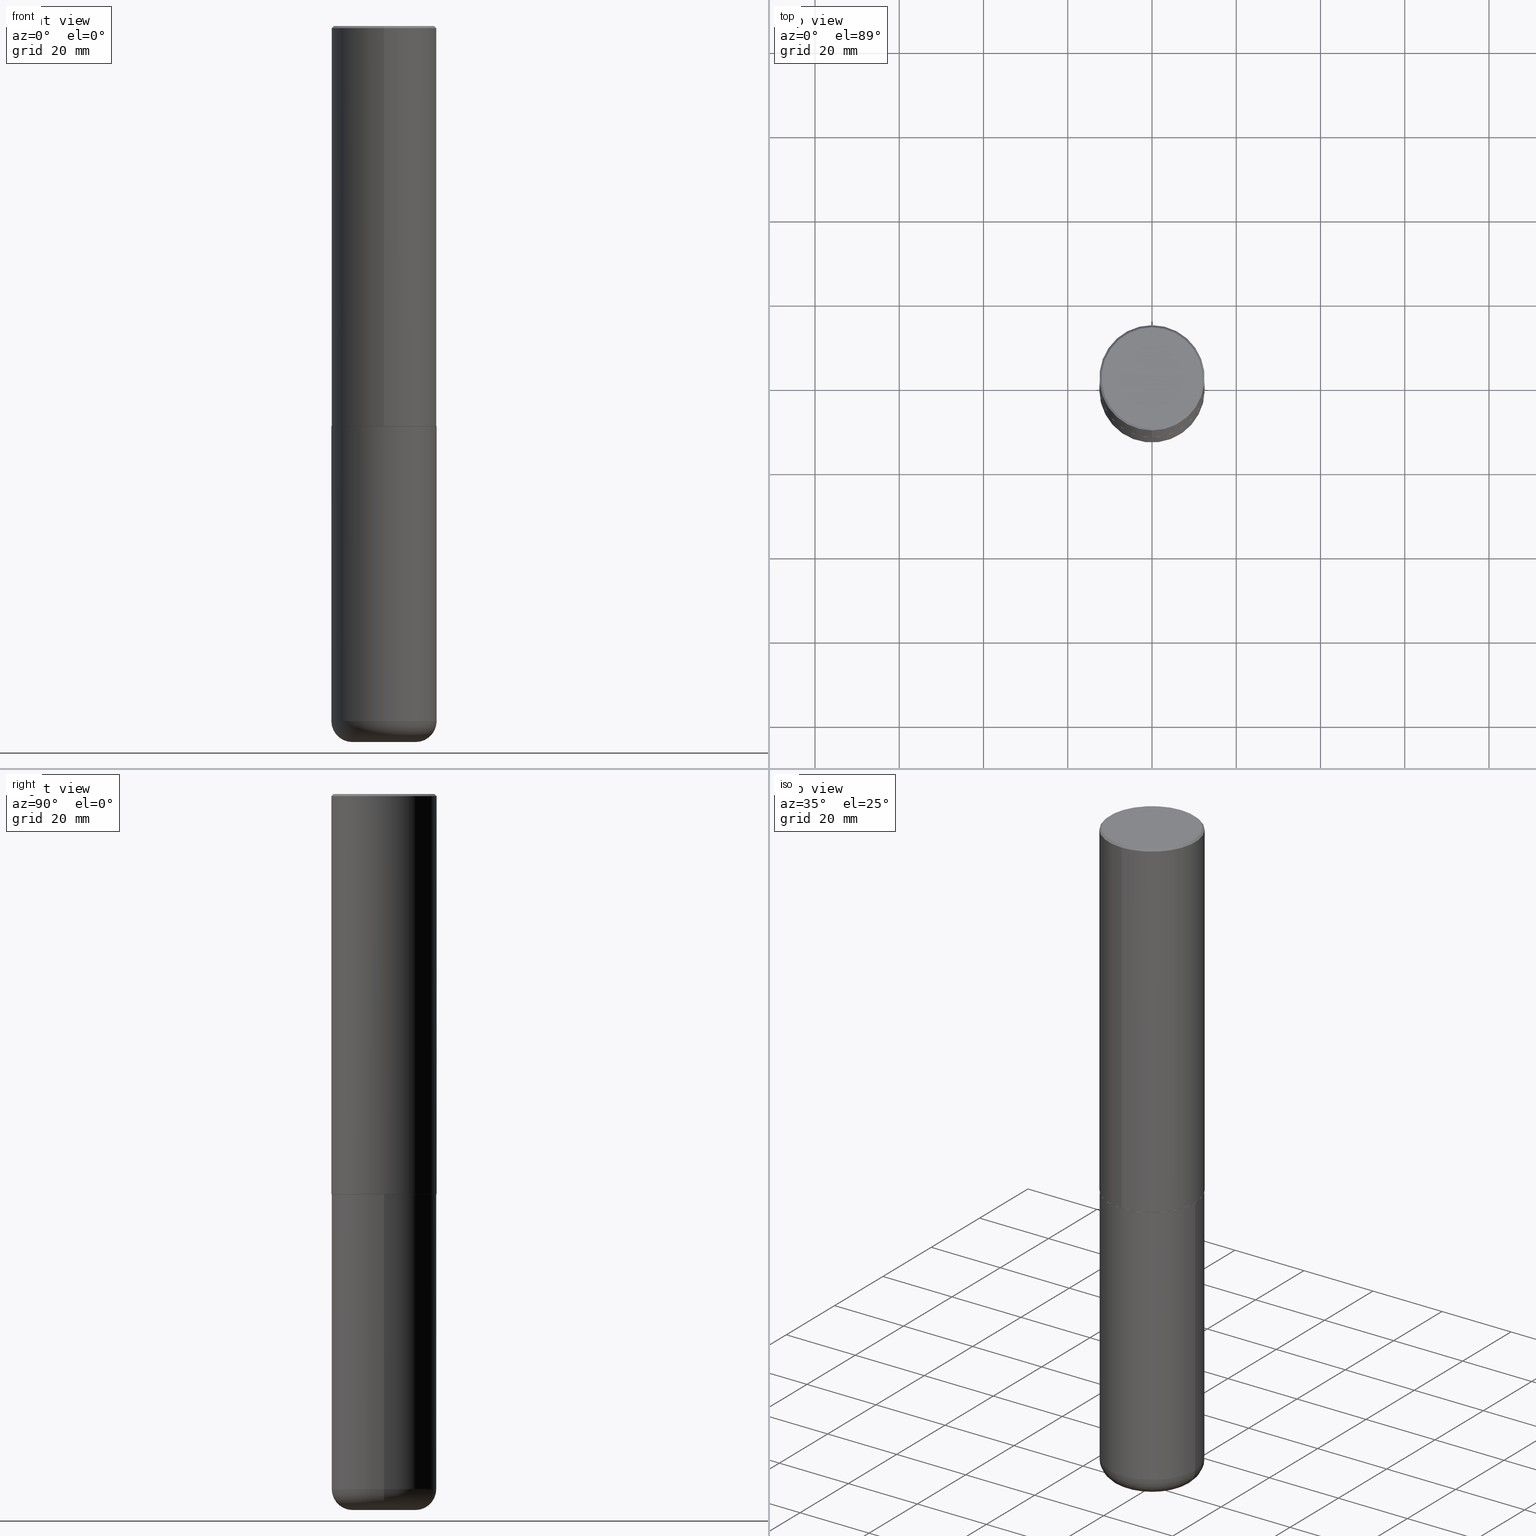
[diagram: canonical four-view strip — front | top / right | iso, engineering-drawing reading convention]
A machine part, canonical four-view strip (front | top / right | iso — engineering-drawing reading convention). The complete STEP part file that produces these views, byte-faithful:
ISO-10303-21;
HEADER;
FILE_DESCRIPTION (( 'STEP AP203' ),
    '1' );
FILE_NAME ('47635.STEP',
    '2024-03-06T19:44:06',
    ( '' ),
    ( '' ),
    'SwSTEP 2.0',
    'SolidWorks 2023',
    '' );
FILE_SCHEMA (( 'CONFIG_CONTROL_DESIGN' ));
ENDSEC;

DATA;
#1 = DIRECTION ( 'NONE',  ( -6.982962677686265922E-15, -1.000000000000000000, 3.486624039460257331E-15 ) ) ;
#2 = CIRCLE ( 'NONE', #187, 0.4921499999999999764 ) ;
#3 = SECURITY_CLASSIFICATION ( '', '', #89 ) ;
#4 = CARTESIAN_POINT ( 'NONE',  ( 9.146297882013029477E-29, -1.305848935540725085E-14, -3.740100000000000424 ) ) ;
#5 = ADVANCED_FACE ( 'NONE', ( #375 ), #343, .T. ) ;
#6 = DIRECTION ( 'NONE',  ( 6.982962677686265922E-15, 1.000000000000000000, -3.490754157143982552E-15 ) ) ;
#7 = DIRECTION ( 'NONE',  ( -4.851104656540955597E-15, -0.7071067811865487940, -0.7071067811865461294 ) ) ;
#8 = AXIS2_PLACEMENT_3D ( 'NONE', #39, #360, #117 ) ;
#9 = ORIENTED_EDGE ( 'NONE', *, *, #395, .T. ) ;
#10 = APPROVAL ( #87, 'UNSPECIFIED' ) ;
#11 = DIRECTION ( 'NONE',  ( -2.445468806185136597E-29, 3.491481338843145583E-15, 1.000000000000000000 ) ) ;
#12 = EDGE_LOOP ( 'NONE', ( #194, #242, #209, #418 ) ) ;
#13 = MANIFOLD_SOLID_BREP ( 'Body-Move/Copy2[2]', #66 ) ;
#14 = DIRECTION ( 'NONE',  ( 6.982962677686265922E-15, 1.000000000000000000, -3.486624039460257331E-15 ) ) ;
#15 = EDGE_LOOP ( 'NONE', ( #95, #9, #349, #216 ) ) ;
#16 = DIRECTION ( 'NONE',  ( 1.000000000000000000, -6.982962677686265922E-15, 0.000000000000000000 ) ) ;
#17 = AXIS2_PLACEMENT_3D ( 'NONE', #231, #68, #32 ) ;
#18 = DIRECTION ( 'NONE',  ( -2.445976594451651952E-29, 3.490754157143982552E-15, 1.000000000000000000 ) ) ;
#19 = PERSON_AND_ORGANIZATION_ROLE ( 'design_owner' ) ;
#20 = EDGE_LOOP ( 'NONE', ( #123, #347 ) ) ;
#21 = DIRECTION ( 'NONE',  ( 0.000000000000000000, 0.000000000000000000, 1.000000000000000000 ) ) ;
#22 = DIRECTION ( 'NONE',  ( 2.445976594451651952E-29, -3.490754157143982552E-15, -1.000000000000000000 ) ) ;
#23 = EDGE_CURVE ( 'NONE', #236, #192, #254, .T. ) ;
#24 = PERSON_AND_ORGANIZATION ( #176, #263 ) ;
#25 = DIRECTION ( 'NONE',  ( 6.982962677686265922E-15, 1.000000000000000000, -3.486624039460257331E-15 ) ) ;
#26 = DATE_AND_TIME ( #125, #207 ) ;
#27 = CARTESIAN_POINT ( 'NONE',  ( 0.000000000000000000, 0.000000000000000000, 0.000000000000000000 ) ) ;
#28 = DIRECTION ( 'NONE',  ( -2.445976594451651952E-29, 3.490754157143982552E-15, 1.000000000000000000 ) ) ;
#29 = TOROIDAL_SURFACE ( 'NONE', #221, 0.2952499999999999569, 0.1968999999999996031 ) ;
#30 = CARTESIAN_POINT ( 'NONE',  ( -5.420756467185317189E-45, 7.736185299407739239E-31, 2.216193106459615290E-16 ) ) ;
#31 = ADVANCED_FACE ( 'NONE', ( #380 ), #86, .T. ) ;
#32 = DIRECTION ( 'NONE',  ( 1.000000000000000000, -6.982962677686264344E-15, 4.883557194083111780E-29 ) ) ;
#33 = LINE ( 'NONE', #226, #402 ) ;
#34 =( GEOMETRIC_REPRESENTATION_CONTEXT ( 3 ) GLOBAL_UNCERTAINTY_ASSIGNED_CONTEXT ( ( #397 ) ) GLOBAL_UNIT_ASSIGNED_CONTEXT ( ( #334, #296, #177 ) ) REPRESENTATION_CONTEXT ( 'NONE', 'WORKASPACE' ) );
#35 = CARTESIAN_POINT ( 'NONE',  ( 9.145751084314172604E-29, -1.305227886897706845E-14, -3.739100000000000534 ) ) ;
#36 = ADVANCED_FACE ( 'NONE', ( #278 ), #81, .T. ) ;
#37 = DIRECTION ( 'NONE',  ( 5.024295867790978808E-15, 0.7071067811869604647, 0.7071067811861345698 ) ) ;
#38 = FACE_OUTER_BOUND ( 'NONE', #116, .T. ) ;
#39 = CARTESIAN_POINT ( 'NONE',  ( 9.148197060908621523E-29, -1.305576962313420868E-14, -3.740099999999999980 ) ) ;
#40 = ORIENTED_EDGE ( 'NONE', *, *, #94, .F. ) ;
#41 = ORIENTED_EDGE ( 'NONE', *, *, #230, .F. ) ;
#42 = LINE ( 'NONE', #112, #179 ) ;
#43 = ORIENTED_EDGE ( 'NONE', *, *, #358, .T. ) ;
#44 = CC_DESIGN_PERSON_AND_ORGANIZATION_ASSIGNMENT ( #415, #374, ( #3 ) ) ;
#45 = CARTESIAN_POINT ( 'NONE',  ( -3.307789109625541747E-15, -0.4721499999999996255, 1.869778885941491673E-15 ) ) ;
#46 = CIRCLE ( 'NONE', #351, 0.1968999999999995754 ) ;
#47 = ORIENTED_EDGE ( 'NONE', *, *, #182, .F. ) ;
#48 = COORDINATED_UNIVERSAL_TIME_OFFSET ( 5, 0, .BEHIND. ) ;
#49 = ORIENTED_EDGE ( 'NONE', *, *, #322, .T. ) ;
#50 = APPROVAL_ROLE ( '' ) ;
#51 = DIRECTION ( 'NONE',  ( -2.445468806185136597E-29, 3.491481338843145583E-15, 1.000000000000000000 ) ) ;
#52 = COORDINATED_UNIVERSAL_TIME_OFFSET ( 5, 0, .BEHIND. ) ;
#53 = CARTESIAN_POINT ( 'NONE',  ( 0.4921499999999999764, -3.436665081823295777E-15, 2.399810400207969603E-29 ) ) ;
#54 = AXIS2_PLACEMENT_3D ( 'NONE', #414, #22, #25 ) ;
#55 = PERSON_AND_ORGANIZATION ( #176, #263 ) ;
#56 = ORIENTED_EDGE ( 'NONE', *, *, #243, .F. ) ;
#57 = DATE_TIME_ROLE ( 'classification_date' ) ;
#58 = DIRECTION ( 'NONE',  ( -6.982962677686265922E-15, -1.000000000000000000, 3.490754157143982552E-15 ) ) ;
#59 = ADVANCED_FACE ( 'NONE', ( #223 ), #156, .T. ) ;
#60 = DIRECTION ( 'NONE',  ( -2.445976594451651392E-29, 3.490754157143982552E-15, 1.000000000000000000 ) ) ;
#61 = AXIS2_PLACEMENT_3D ( 'NONE', #27, #284, #58 ) ;
#62 = DIRECTION ( 'NONE',  ( -6.982962677686265922E-15, -1.000000000000000000, 3.486624039460257331E-15 ) ) ;
#63 = CARTESIAN_POINT ( 'NONE',  ( 3.489830646685823002E-15, 0.4911499999999869304, -3.740100000000001312 ) ) ;
#64 = ADVANCED_FACE ( 'NONE', ( #318 ), #269, .T. ) ;
#65 = DIRECTION ( 'NONE',  ( -2.445468806185136597E-29, 3.491481338843145583E-15, 1.000000000000000000 ) ) ;
#66 = CLOSED_SHELL ( 'NONE', ( #378, #31, #36, #274, #59, #64, #248, #121 ) ) ;
#67 = AXIS2_PLACEMENT_3D ( 'NONE', #72, #405, #16 ) ;
#68 = DIRECTION ( 'NONE',  ( -2.445468806185136597E-29, 3.491481338843145583E-15, 1.000000000000000000 ) ) ;
#69 = DIRECTION ( 'NONE',  ( -2.445468806185136597E-29, 3.491481338843145583E-15, 1.000000000000000000 ) ) ;
#70 = DIRECTION ( 'NONE',  ( -6.982962677686265922E-15, -1.000000000000000000, 3.330506545156063496E-15 ) ) ;
#71 = VERTEX_POINT ( 'NONE', #281 ) ;
#72 = CARTESIAN_POINT ( 'NONE',  ( 1.588576536497864771E-28, -2.268066277712507367E-14, -6.495999999999999552 ) ) ;
#73 = TOROIDAL_SURFACE ( 'NONE', #17, 0.2952499999999999569, 0.1968999999999996031 ) ;
#74 = ORIENTED_EDGE ( 'NONE', *, *, #113, .T. ) ;
#75 = DIRECTION ( 'NONE',  ( 1.000000000000000000, -6.982962677686273021E-15, 0.000000000000000000 ) ) ;
#76 = ORIENTED_EDGE ( 'NONE', *, *, #107, .T. ) ;
#77 = EDGE_CURVE ( 'NONE', #367, #316, #159, .T. ) ;
#78 = LENGTH_MEASURE_WITH_UNIT ( LENGTH_MEASURE( 0.02539999999999999897 ), #301 );
#79 = EDGE_LOOP ( 'NONE', ( #218, #142 ) ) ;
#80 = APPROVAL_ROLE ( '' ) ;
#81 = CONICAL_SURFACE ( 'NONE', #54, 0.4921499999999999209, 0.7853981633974467247 ) ;
#82 = EDGE_LOOP ( 'NONE', ( #340, #76, #311, #40 ) ) ;
#83 = CC_DESIGN_SECURITY_CLASSIFICATION ( #3, ( #386 ) ) ;
#84 = APPROVAL_DATE_TIME ( #246, #10 ) ;
#85 = PRODUCT_DEFINITION ( 'UNKNOWN', '', #386, #172 ) ;
#86 = CYLINDRICAL_SURFACE ( 'NONE', #104, 0.4921500000000000874 ) ;
#87 = APPROVAL_STATUS ( 'not_yet_approved' ) ;
#88 = LINE ( 'NONE', #283, #345 ) ;
#89 = SECURITY_CLASSIFICATION_LEVEL ( 'unclassified' ) ;
#90 = ORIENTED_EDGE ( 'NONE', *, *, #94, .T. ) ;
#91 = AXIS2_PLACEMENT_3D ( 'NONE', #308, #18, #396 ) ;
#92 = APPROVAL_PERSON_ORGANIZATION ( #55, #100, #80 ) ;
#93 = VERTEX_POINT ( 'NONE', #128 ) ;
#94 = EDGE_CURVE ( 'NONE', #316, #371, #314, .T. ) ;
#95 = ORIENTED_EDGE ( 'NONE', *, *, #190, .F. ) ;
#96 = ADVANCED_FACE ( 'NONE', ( #309 ), #408, .F. ) ;
#97 = DIRECTION ( 'NONE',  ( -2.445976594451651952E-29, 3.490754157143982552E-15, 1.000000000000000000 ) ) ;
#98 = AXIS2_PLACEMENT_3D ( 'NONE', #183, #28, #188 ) ;
#99 = LOCAL_TIME ( 14, 44, 6.000000000000000000, #52 ) ;
#100 = APPROVAL ( #315, 'UNSPECIFIED' ) ;
#101 = LINE ( 'NONE', #63, #245 ) ;
#102 = DIRECTION ( 'NONE',  ( 2.445976594451651392E-29, -3.490754157143982552E-15, -1.000000000000000000 ) ) ;
#103 = FACE_OUTER_BOUND ( 'NONE', #109, .T. ) ;
#104 = AXIS2_PLACEMENT_3D ( 'NONE', #224, #161, #350 ) ;
#105 = AXIS2_PLACEMENT_3D ( 'NONE', #217, #21, #313 ) ;
#106 = CARTESIAN_POINT ( 'NONE',  ( 4.891953188903329688E-31, -6.981508314288001687E-17, -0.02000000000000010797 ) ) ;
#107 = EDGE_CURVE ( 'NONE', #377, #330, #88, .T. ) ;
#108 = DIRECTION ( 'NONE',  ( 1.000000000000000000, -6.982962677686265922E-15, 4.876176775795935793E-29 ) ) ;
#109 = EDGE_LOOP ( 'NONE', ( #273, #406 ) ) ;
#110 = DIRECTION ( 'NONE',  ( -6.982962677686266711E-15, -1.000000000000000000, 3.491481338843145583E-15 ) ) ;
#111 = DIMENSIONAL_EXPONENTS ( 1.000000000000000000, 0.000000000000000000, 0.000000000000000000, 0.000000000000000000, 0.000000000000000000, 0.000000000000000000, 0.000000000000000000 ) ;
#112 = CARTESIAN_POINT ( 'NONE',  ( 3.436665081823295777E-15, 0.4921499999999998098, -0.02000000000000182188 ) ) ;
#113 = EDGE_CURVE ( 'NONE', #367, #126, #155, .T. ) ;
#114 = ORIENTED_EDGE ( 'NONE', *, *, #129, .F. ) ;
#115 = CARTESIAN_POINT ( 'NONE',  ( -0.4921499999999997543, -1.918372670308173998E-14, -6.495999999999999552 ) ) ;
#116 = EDGE_LOOP ( 'NONE', ( #74, #305, #297, #144 ) ) ;
#117 = DIRECTION ( 'NONE',  ( -6.982962677686265922E-15, -1.000000000000000000, 3.337287582609300506E-15 ) ) ;
#118 = EDGE_LOOP ( 'NONE', ( #302, #49 ) ) ;
#119 = AXIS2_PLACEMENT_3D ( 'NONE', #106, #202, #62 ) ;
#120 = CARTESIAN_POINT ( 'NONE',  ( 9.146297882013029477E-29, -1.305848935540725085E-14, -3.740100000000000424 ) ) ;
#121 = ADVANCED_FACE ( 'NONE', ( #352 ), #199, .F. ) ;
#122 = PERSON_AND_ORGANIZATION_ROLE ( 'creator' ) ;
#123 = ORIENTED_EDGE ( 'NONE', *, *, #113, .F. ) ;
#124 = DIRECTION ( 'NONE',  ( -2.445976594451651672E-29, 3.490754157143982552E-15, 1.000000000000000000 ) ) ;
#125 = CALENDAR_DATE ( 2024, 6, 3 ) ;
#126 = VERTEX_POINT ( 'NONE', #323 ) ;
#127 = CC_DESIGN_PERSON_AND_ORGANIZATION_ASSIGNMENT ( #186, #122, ( #386 ) ) ;
#128 = CARTESIAN_POINT ( 'NONE',  ( -0.2952500000000000124, -2.022699236424666989E-14, -6.692899999999998961 ) ) ;
#129 = EDGE_CURVE ( 'NONE', #153, #335, #238, .T. ) ;
#130 = ADVANCED_BREP_SHAPE_REPRESENTATION ( '47635', ( #289, #13, #105 ), #34 ) ;
#131 = FACE_OUTER_BOUND ( 'NONE', #149, .T. ) ;
#132 = CARTESIAN_POINT ( 'NONE',  ( -0.4921499999999999764, -1.437263999222282936E-14, -3.740100000000000424 ) ) ;
#133 = AXIS2_PLACEMENT_3D ( 'NONE', #35, #258, #388 ) ;
#134 = CC_DESIGN_APPROVAL ( #10, ( #85 ) ) ;
#135 = FACE_OUTER_BOUND ( 'NONE', #361, .T. ) ;
#136 = DIRECTION ( 'NONE',  ( -6.982962677686265922E-15, -1.000000000000000000, 3.337287582609300506E-15 ) ) ;
#137 = DIRECTION ( 'NONE',  ( 1.000000000000000000, -6.982962677686265922E-15, 0.000000000000000000 ) ) ;
#138 = EDGE_CURVE ( 'NONE', #335, #371, #33, .T. ) ;
#139 = CIRCLE ( 'NONE', #168, 0.4921499999999999764 ) ;
#140 = AXIS2_PLACEMENT_3D ( 'NONE', #141, #208, #75 ) ;
#141 = CARTESIAN_POINT ( 'NONE',  ( 1.636727817291649742E-28, -2.336813545274328465E-14, -6.692899999999998961 ) ) ;
#142 = ORIENTED_EDGE ( 'NONE', *, *, #219, .T. ) ;
#143 = DIRECTION ( 'NONE',  ( 2.445976594451651952E-29, -3.490754157143982552E-15, -1.000000000000000000 ) ) ;
#144 = ORIENTED_EDGE ( 'NONE', *, *, #77, .F. ) ;
#145 = EDGE_LOOP ( 'NONE', ( #369, #398, #47, #337 ) ) ;
#146 = AXIS2_PLACEMENT_3D ( 'NONE', #411, #51, #222 ) ;
#147 = CARTESIAN_POINT ( 'NONE',  ( 1.588576536497864771E-28, -2.268066277712507367E-14, -6.495999999999999552 ) ) ;
#148 = CIRCLE ( 'NONE', #379, 0.1968999999999995754 ) ;
#149 = EDGE_LOOP ( 'NONE', ( #344, #114, #181, #175 ) ) ;
#150 = CYLINDRICAL_SURFACE ( 'NONE', #164, 0.4921499999999999764 ) ;
#151 = EDGE_LOOP ( 'NONE', ( #56, #394, #237, #41 ) ) ;
#152 = APPROVAL_DATE_TIME ( #26, #100 ) ;
#153 = VERTEX_POINT ( 'NONE', #321 ) ;
#154 = PERSON_AND_ORGANIZATION_ROLE ( 'creator' ) ;
#155 = CIRCLE ( 'NONE', #312, 0.4911499999999999755 ) ;
#156 = CYLINDRICAL_SURFACE ( 'NONE', #61, 0.4921500000000000874 ) ;
#157 = LOCAL_TIME ( 14, 44, 6.000000000000000000, #376 ) ;
#158 = DATE_AND_TIME ( #280, #157 ) ;
#159 = LINE ( 'NONE', #163, #299 ) ;
#160 = EDGE_CURVE ( 'NONE', #404, #178, #294, .T. ) ;
#161 = DIRECTION ( 'NONE',  ( -2.445976594451651952E-29, 3.490754157143982552E-15, 1.000000000000000000 ) ) ;
#162 = SHAPE_DEFINITION_REPRESENTATION ( #276, #130 ) ;
#163 = CARTESIAN_POINT ( 'NONE',  ( -3.429682119145517860E-15, -0.4911500000000130206, -3.740099999999998204 ) ) ;
#164 = AXIS2_PLACEMENT_3D ( 'NONE', #241, #328, #108 ) ;
#165 = CARTESIAN_POINT ( 'NONE',  ( 0.4921499999999997543, -2.611732785894836787E-14, -6.495999999999999552 ) ) ;
#166 = CARTESIAN_POINT ( 'NONE',  ( 1.588576536497864771E-28, -2.268066277712507367E-14, -6.495999999999999552 ) ) ;
#167 = DIRECTION ( 'NONE',  ( -6.982962677686265922E-15, -1.000000000000000000, 3.490754157143982946E-15 ) ) ;
#168 = AXIS2_PLACEMENT_3D ( 'NONE', #197, #65, #137 ) ;
#169 = CARTESIAN_POINT ( 'NONE',  ( 3.297005828269567997E-15, 0.4721499999999996255, -1.537349919972549256E-15 ) ) ;
#170 = EDGE_CURVE ( 'NONE', #371, #330, #306, .T. ) ;
#171 = FACE_OUTER_BOUND ( 'NONE', #20, .T. ) ;
#172 = DESIGN_CONTEXT ( 'detailed design', #400, 'design' ) ;
#173 = AXIS2_PLACEMENT_3D ( 'NONE', #147, #69, #239 ) ;
#174 = DIRECTION ( 'NONE',  ( 1.000000000000000000, -6.982962677686273021E-15, 0.000000000000000000 ) ) ;
#175 = ORIENTED_EDGE ( 'NONE', *, *, #256, .T. ) ;
#176 = PERSON ( 'UNSPECIFIED', 'UNSPECIFIED', 'UNSPECIFIED', ('UNSPECIFIED'), ('UNSPECIFIED'), ('UNSPECIFIED') ) ;
#177 =( NAMED_UNIT ( * ) SI_UNIT ( $, .STERADIAN. ) SOLID_ANGLE_UNIT ( ) );
#178 = VERTEX_POINT ( 'NONE', #132 ) ;
#179 = VECTOR ( 'NONE', #304, 39.37007874015748143 ) ;
#180 = DIRECTION ( 'NONE',  ( 1.000000000000000000, -6.982962677686270655E-15, 0.000000000000000000 ) ) ;
#181 = ORIENTED_EDGE ( 'NONE', *, *, #362, .T. ) ;
#182 = EDGE_CURVE ( 'NONE', #192, #178, #139, .T. ) ;
#183 = CARTESIAN_POINT ( 'NONE',  ( 9.148197060908621523E-29, -1.305576962313420868E-14, -3.740099999999999980 ) ) ;
#184 = PERSON_AND_ORGANIZATION ( #176, #263 ) ;
#185 = DIRECTION ( 'NONE',  ( -2.445468806185136877E-29, 3.491481338843145188E-15, 1.000000000000000000 ) ) ;
#186 = PERSON_AND_ORGANIZATION ( #176, #263 ) ;
#187 = AXIS2_PLACEMENT_3D ( 'NONE', #4, #261, #353 ) ;
#188 = DIRECTION ( 'NONE',  ( -6.982962677686265922E-15, -1.000000000000000000, 3.337287582609300506E-15 ) ) ;
#189 = CIRCLE ( 'NONE', #332, 0.2952500000000000124 ) ;
#190 = EDGE_CURVE ( 'NONE', #93, #404, #46, .T. ) ;
#191 = COORDINATED_UNIVERSAL_TIME_OFFSET ( 5, 0, .BEHIND. ) ;
#192 = VERTEX_POINT ( 'NONE', #257 ) ;
#193 = APPLICATION_PROTOCOL_DEFINITION ( 'international standard', 'config_control_design', 1994, #400 ) ;
#194 = ORIENTED_EDGE ( 'NONE', *, *, #322, .F. ) ;
#195 = DIRECTION ( 'NONE',  ( -6.982962677686265922E-15, -1.000000000000000000, 3.490754157143982552E-15 ) ) ;
#196 = CONICAL_SURFACE ( 'NONE', #8, 0.4911499999999999755, 0.7853981633980288146 ) ;
#197 = CARTESIAN_POINT ( 'NONE',  ( 9.146297882013029477E-29, -1.305848935540725085E-14, -3.740100000000000424 ) ) ;
#198 = ADVANCED_FACE ( 'NONE', ( #290 ), #73, .T. ) ;
#199 = PLANE ( 'NONE',  #201 ) ;
#200 = DIRECTION ( 'NONE',  ( 7.105427357601001859E-15, 1.000000000000000000, -3.491481338843145583E-15 ) ) ;
#201 = AXIS2_PLACEMENT_3D ( 'NONE', #169, #102, #6 ) ;
#202 = DIRECTION ( 'NONE',  ( -2.445976594451651952E-29, 3.490754157143982552E-15, 1.000000000000000000 ) ) ;
#203 = ADVANCED_FACE ( 'NONE', ( #135 ), #29, .T. ) ;
#204 = CARTESIAN_POINT ( 'NONE',  ( 1.636727817291649742E-28, -2.336813545274328465E-14, -6.692899999999998961 ) ) ;
#205 = DIRECTION ( 'NONE',  ( -6.982962677686265922E-15, -1.000000000000000000, 3.337287582609300506E-15 ) ) ;
#206 = CC_DESIGN_DATE_AND_TIME_ASSIGNMENT ( #346, #57, ( #3 ) ) ;
#207 = LOCAL_TIME ( 14, 44, 6.000000000000000000, #191 ) ;
#208 = DIRECTION ( 'NONE',  ( -2.445468806185136597E-29, 3.491481338843145583E-15, 1.000000000000000000 ) ) ;
#209 = ORIENTED_EDGE ( 'NONE', *, *, #170, .T. ) ;
#210 = ORIENTED_EDGE ( 'NONE', *, *, #333, .F. ) ;
#211 = CARTESIAN_POINT ( 'NONE',  ( 9.145751084314172604E-29, -1.305227886897706845E-14, -3.739100000000000534 ) ) ;
#212 = ORIENTED_EDGE ( 'NONE', *, *, #256, .F. ) ;
#213 = ADVANCED_FACE ( 'NONE', ( #103 ), #228, .T. ) ;
#214 = AXIS2_PLACEMENT_3D ( 'NONE', #234, #60, #195 ) ;
#215 = APPROVAL_ROLE ( '' ) ;
#216 = ORIENTED_EDGE ( 'NONE', *, *, #358, .F. ) ;
#217 = CARTESIAN_POINT ( 'NONE',  ( 0.000000000000000000, 0.000000000000000000, 0.000000000000000000 ) ) ;
#218 = ORIENTED_EDGE ( 'NONE', *, *, #182, .T. ) ;
#219 = EDGE_CURVE ( 'NONE', #178, #192, #2, .T. ) ;
#220 = CALENDAR_DATE ( 2024, 6, 3 ) ;
#221 = AXIS2_PLACEMENT_3D ( 'NONE', #166, #356, #324 ) ;
#222 = DIRECTION ( 'NONE',  ( 1.000000000000000000, -6.982962677686265922E-15, 4.876176775795935793E-29 ) ) ;
#223 = FACE_OUTER_BOUND ( 'NONE', #244, .T. ) ;
#224 = CARTESIAN_POINT ( 'NONE',  ( 0.000000000000000000, 0.000000000000000000, 0.000000000000000000 ) ) ;
#225 = CC_DESIGN_PERSON_AND_ORGANIZATION_ASSIGNMENT ( #24, #154, ( #85 ) ) ;
#226 = CARTESIAN_POINT ( 'NONE',  ( -3.376394089603257868E-15, -0.4921499999999999764, -0.01999999999999839059 ) ) ;
#227 = AXIS2_PLACEMENT_3D ( 'NONE', #329, #359, #205 ) ;
#228 = PLANE ( 'NONE',  #325 ) ;
#229 = DIRECTION ( 'NONE',  ( -2.445468806185136877E-29, 3.491481338843145188E-15, 1.000000000000000000 ) ) ;
#230 = EDGE_CURVE ( 'NONE', #377, #316, #262, .T. ) ;
#231 = CARTESIAN_POINT ( 'NONE',  ( 1.588576536497864771E-28, -2.268066277712507367E-14, -6.495999999999999552 ) ) ;
#232 = VECTOR ( 'NONE', #255, 39.37007874015748143 ) ;
#233 = PRODUCT ( '47635', '47635', '', ( #317 ) ) ;
#234 = CARTESIAN_POINT ( 'NONE',  ( 9.148197060908621523E-29, -1.305576962313420868E-14, -3.740099999999999980 ) ) ;
#235 = CARTESIAN_POINT ( 'NONE',  ( -3.436665081823207030E-15, -0.4921500000000134101, -3.739099999999998758 ) ) ;
#236 = VERTEX_POINT ( 'NONE', #165 ) ;
#237 = ORIENTED_EDGE ( 'NONE', *, *, #77, .T. ) ;
#238 = CIRCLE ( 'NONE', #385, 0.4721499999999996255 ) ;
#239 = DIRECTION ( 'NONE',  ( 1.000000000000000000, -6.982962677686265922E-15, 0.000000000000000000 ) ) ;
#240 = ORIENTED_EDGE ( 'NONE', *, *, #160, .F. ) ;
#241 = CARTESIAN_POINT ( 'NONE',  ( 0.000000000000000000, 0.000000000000000000, 0.000000000000000000 ) ) ;
#242 = ORIENTED_EDGE ( 'NONE', *, *, #138, .T. ) ;
#243 = EDGE_CURVE ( 'NONE', #126, #377, #101, .T. ) ;
#244 = EDGE_LOOP ( 'NONE', ( #271, #267, #90, #212 ) ) ;
#245 = VECTOR ( 'NONE', #37, 39.37007874015748143 ) ;
#246 = DATE_AND_TIME ( #310, #293 ) ;
#247 = DIRECTION ( 'NONE',  ( -1.000000000000000000, 6.982962677686265922E-15, -4.876176775795935793E-29 ) ) ;
#248 = ADVANCED_FACE ( 'NONE', ( #171 ), #391, .F. ) ;
#249 = PERSON_AND_ORGANIZATION ( #176, #263 ) ;
#250 = CARTESIAN_POINT ( 'NONE',  ( -3.436665081823296565E-15, -0.4921500000000000874, 1.717974658438411319E-15 ) ) ;
#251 = PERSON_AND_ORGANIZATION_ROLE ( 'design_supplier' ) ;
#252 = CARTESIAN_POINT ( 'NONE',  ( 9.148197060908621523E-29, -1.305576962313420868E-14, -3.740099999999999980 ) ) ;
#253 = CIRCLE ( 'NONE', #67, 0.4921499999999999764 ) ;
#254 = LINE ( 'NONE', #53, #417 ) ;
#255 = DIRECTION ( 'NONE',  ( -2.445976594451651672E-29, 3.490754157143982552E-15, 1.000000000000000000 ) ) ;
#256 = EDGE_CURVE ( 'NONE', #330, #371, #364, .T. ) ;
#257 = CARTESIAN_POINT ( 'NONE',  ( 0.4921499999999999764, -1.649515443723054663E-14, -3.740100000000000424 ) ) ;
#258 = DIRECTION ( 'NONE',  ( -2.445976594451651952E-29, 3.490754157143982552E-15, 1.000000000000000000 ) ) ;
#259 = VECTOR ( 'NONE', #229, 39.37007874015748143 ) ;
#260 = DIRECTION ( 'NONE',  ( -2.445976594451651952E-29, 3.490754157143982552E-15, 1.000000000000000000 ) ) ;
#261 = DIRECTION ( 'NONE',  ( -2.445468806185136597E-29, 3.491481338843145583E-15, 1.000000000000000000 ) ) ;
#262 = CIRCLE ( 'NONE', #133, 0.4921500000000003650 ) ;
#263 = ORGANIZATION ( 'UNSPECIFIED', 'UNSPECIFIED', '' ) ;
#264 = CARTESIAN_POINT ( 'NONE',  ( -3.429682119145517860E-15, -0.4911500000000130206, -3.740099999999998204 ) ) ;
#265 = ORIENTED_EDGE ( 'NONE', *, *, #23, .T. ) ;
#266 = CARTESIAN_POINT ( 'NONE',  ( 3.436665081823295777E-15, 0.4921499999999998098, -0.02000000000000182188 ) ) ;
#267 = ORIENTED_EDGE ( 'NONE', *, *, #230, .T. ) ;
#268 = ORIENTED_EDGE ( 'NONE', *, *, #413, .T. ) ;
#269 = CONICAL_SURFACE ( 'NONE', #98, 0.4911499999999999755, 0.7853981633980288146 ) ;
#270 = APPROVAL_PERSON_ORGANIZATION ( #184, #10, #50 ) ;
#271 = ORIENTED_EDGE ( 'NONE', *, *, #107, .F. ) ;
#272 = CARTESIAN_POINT ( 'NONE',  ( 0.2952499999999999569, -2.474238250771194590E-14, -6.495999999999999552 ) ) ;
#273 = ORIENTED_EDGE ( 'NONE', *, *, #413, .F. ) ;
#274 = ADVANCED_FACE ( 'NONE', ( #131 ), #319, .T. ) ;
#275 = APPLICATION_CONTEXT ( 'configuration controlled 3d designs of mechanical parts and assemblies' ) ;
#276 = PRODUCT_DEFINITION_SHAPE ( 'NONE', 'NONE',  #85 ) ;
#277 = DATE_TIME_ROLE ( 'creation_date' ) ;
#278 = FACE_OUTER_BOUND ( 'NONE', #12, .T. ) ;
#279 = CC_DESIGN_DATE_AND_TIME_ASSIGNMENT ( #158, #277, ( #85 ) ) ;
#280 = CALENDAR_DATE ( 2024, 6, 3 ) ;
#281 = CARTESIAN_POINT ( 'NONE',  ( 0.2952500000000000124, -2.542985518333015688E-14, -6.692899999999998961 ) ) ;
#282 = APPROVAL_DATE_TIME ( #412, #348 ) ;
#283 = CARTESIAN_POINT ( 'NONE',  ( 3.496936074043333291E-15, 0.4921500000000000874, -1.717974658438411319E-15 ) ) ;
#284 = DIRECTION ( 'NONE',  ( -2.445976594451651952E-29, 3.490754157143982552E-15, 1.000000000000000000 ) ) ;
#285 = AXIS2_PLACEMENT_3D ( 'NONE', #211, #393, #70 ) ;
#286 = CIRCLE ( 'NONE', #140, 0.2952500000000000124 ) ;
#287 = DIRECTION ( 'NONE',  ( -4.937700262167413974E-15, -0.7071067811869555797, 0.7071067811861394548 ) ) ;
#288 = DIRECTION ( 'NONE',  ( -2.445976594451651952E-29, 3.490754157143982552E-15, 1.000000000000000000 ) ) ;
#289 = MANIFOLD_SOLID_BREP ( 'Body-Move/Copy2[1]', #355 ) ;
#290 = FACE_OUTER_BOUND ( 'NONE', #15, .T. ) ;
#291 = CARTESIAN_POINT ( 'NONE',  ( -0.4921499999999999764, 3.496936074043332897E-15, -2.420853904668951509E-29 ) ) ;
#292 = AXIS2_PLACEMENT_3D ( 'NONE', #320, #288, #1 ) ;
#293 = LOCAL_TIME ( 14, 44, 6.000000000000000000, #372 ) ;
#294 = LINE ( 'NONE', #291, #259 ) ;
#295 = CARTESIAN_POINT ( 'NONE',  ( 3.366467196184149442E-28, 1.402716959511487627E-15, -6.692899999999999849 ) ) ;
#296 =( NAMED_UNIT ( * ) PLANE_ANGLE_UNIT ( ) SI_UNIT ( $, .RADIAN. ) );
#297 = ORIENTED_EDGE ( 'NONE', *, *, #307, .F. ) ;
#298 = CC_DESIGN_PERSON_AND_ORGANIZATION_ASSIGNMENT ( #249, #251, ( #386 ) ) ;
#299 = VECTOR ( 'NONE', #287, 39.37007874015748143 ) ;
#300 = LOCAL_TIME ( 14, 44, 6.000000000000000000, #48 ) ;
#301 =( LENGTH_UNIT ( ) NAMED_UNIT ( * ) SI_UNIT ( $, .METRE. ) );
#302 = ORIENTED_EDGE ( 'NONE', *, *, #129, .T. ) ;
#303 = CC_DESIGN_PERSON_AND_ORGANIZATION_ASSIGNMENT ( #341, #19, ( #233 ) ) ;
#304 = DIRECTION ( 'NONE',  ( 4.937700262164540154E-15, 0.7071067811865440200, -0.7071067811865511255 ) ) ;
#305 = ORIENTED_EDGE ( 'NONE', *, *, #243, .T. ) ;
#306 = CIRCLE ( 'NONE', #119, 0.4921499999999999209 ) ;
#307 = EDGE_CURVE ( 'NONE', #316, #377, #357, .T. ) ;
#308 = CARTESIAN_POINT ( 'NONE',  ( -5.420756467185317189E-45, 7.736185299407739239E-31, 2.216193106459615290E-16 ) ) ;
#309 = FACE_OUTER_BOUND ( 'NONE', #79, .T. ) ;
#310 = CALENDAR_DATE ( 2024, 6, 3 ) ;
#311 = ORIENTED_EDGE ( 'NONE', *, *, #170, .F. ) ;
#312 = AXIS2_PLACEMENT_3D ( 'NONE', #252, #260, #136 ) ;
#313 = DIRECTION ( 'NONE',  ( 1.000000000000000000, 0.000000000000000000, 0.000000000000000000 ) ) ;
#314 = LINE ( 'NONE', #250, #232 ) ;
#315 = APPROVAL_STATUS ( 'not_yet_approved' ) ;
#316 = VERTEX_POINT ( 'NONE', #235 ) ;
#317 = MECHANICAL_CONTEXT ( 'NONE', #275, 'mechanical' ) ;
#318 = FACE_OUTER_BOUND ( 'NONE', #151, .T. ) ;
#319 = CONICAL_SURFACE ( 'NONE', #326, 0.4921499999999999209, 0.7853981633974467247 ) ;
#320 = CARTESIAN_POINT ( 'NONE',  ( 4.891953188903329688E-31, -6.981508314288001687E-17, -0.02000000000000010797 ) ) ;
#321 = CARTESIAN_POINT ( 'NONE',  ( 3.366835455046432084E-15, 0.4721499999999996255, -1.426540264649568516E-15 ) ) ;
#322 = EDGE_CURVE ( 'NONE', #335, #153, #338, .T. ) ;
#323 = CARTESIAN_POINT ( 'NONE',  ( 3.493383360364624690E-15, 0.4911499999999869304, -3.740100000000001312 ) ) ;
#324 = DIRECTION ( 'NONE',  ( 1.000000000000000000, -6.982962677686264344E-15, 4.883557194083111780E-29 ) ) ;
#325 = AXIS2_PLACEMENT_3D ( 'NONE', #295, #387, #327 ) ;
#326 = AXIS2_PLACEMENT_3D ( 'NONE', #383, #143, #14 ) ;
#327 = DIRECTION ( 'NONE',  ( -1.000000000000000000, 6.982962677686265922E-15, -4.876176775795935793E-29 ) ) ;
#328 = DIRECTION ( 'NONE',  ( -2.445468806185136597E-29, 3.491481338843145583E-15, 1.000000000000000000 ) ) ;
#329 = CARTESIAN_POINT ( 'NONE',  ( 9.148197060908621523E-29, -1.305576962313420868E-14, -3.740099999999999980 ) ) ;
#330 = VERTEX_POINT ( 'NONE', #266 ) ;
#331 = AXIS2_PLACEMENT_3D ( 'NONE', #120, #373, #247 ) ;
#332 = AXIS2_PLACEMENT_3D ( 'NONE', #204, #11, #174 ) ;
#333 = EDGE_CURVE ( 'NONE', #71, #236, #148, .T. ) ;
#334 =( CONVERSION_BASED_UNIT ( 'INCH', #78 ) LENGTH_UNIT ( ) NAMED_UNIT ( #111 ) );
#335 = VERTEX_POINT ( 'NONE', #45 ) ;
#336 = FACE_OUTER_BOUND ( 'NONE', #382, .T. ) ;
#337 = ORIENTED_EDGE ( 'NONE', *, *, #23, .F. ) ;
#338 = CIRCLE ( 'NONE', #91, 0.4721499999999996255 ) ;
#339 = APPROVAL_PERSON_ORGANIZATION ( #407, #348, #215 ) ;
#340 = ORIENTED_EDGE ( 'NONE', *, *, #307, .T. ) ;
#341 = PERSON_AND_ORGANIZATION ( #176, #263 ) ;
#342 = ADVANCED_FACE ( 'NONE', ( #336 ), #150, .T. ) ;
#343 = CYLINDRICAL_SURFACE ( 'NONE', #146, 0.4921499999999999764 ) ;
#344 = ORIENTED_EDGE ( 'NONE', *, *, #138, .F. ) ;
#345 = VECTOR ( 'NONE', #124, 39.37007874015748143 ) ;
#346 = DATE_AND_TIME ( #220, #300 ) ;
#347 = ORIENTED_EDGE ( 'NONE', *, *, #384, .F. ) ;
#348 = APPROVAL ( #370, 'UNSPECIFIED' ) ;
#349 = ORIENTED_EDGE ( 'NONE', *, *, #333, .T. ) ;
#350 = DIRECTION ( 'NONE',  ( -6.982962677686265922E-15, -1.000000000000000000, 3.490754157143982552E-15 ) ) ;
#351 = AXIS2_PLACEMENT_3D ( 'NONE', #354, #200, #389 ) ;
#352 = FACE_OUTER_BOUND ( 'NONE', #118, .T. ) ;
#353 = DIRECTION ( 'NONE',  ( 1.000000000000000000, -6.982962677686265922E-15, 0.000000000000000000 ) ) ;
#354 = CARTESIAN_POINT ( 'NONE',  ( -0.2952499999999999569, -2.058278534979337620E-14, -6.495999999999999552 ) ) ;
#355 = CLOSED_SHELL ( 'NONE', ( #5, #203, #96, #342, #198, #213 ) ) ;
#356 = DIRECTION ( 'NONE',  ( -2.445468806185136597E-29, 3.491481338843145583E-15, 1.000000000000000000 ) ) ;
#357 = CIRCLE ( 'NONE', #285, 0.4921500000000003650 ) ;
#358 = EDGE_CURVE ( 'NONE', #404, #236, #253, .T. ) ;
#359 = DIRECTION ( 'NONE',  ( -2.445976594451651952E-29, 3.490754157143982552E-15, 1.000000000000000000 ) ) ;
#360 = DIRECTION ( 'NONE',  ( -2.445976594451651952E-29, 3.490754157143982552E-15, 1.000000000000000000 ) ) ;
#361 = EDGE_LOOP ( 'NONE', ( #268, #363, #401, #210 ) ) ;
#362 = EDGE_CURVE ( 'NONE', #153, #330, #42, .T. ) ;
#363 = ORIENTED_EDGE ( 'NONE', *, *, #190, .T. ) ;
#364 = CIRCLE ( 'NONE', #292, 0.4921499999999999209 ) ;
#365 = CC_DESIGN_APPROVAL ( #348, ( #386 ) ) ;
#366 = CARTESIAN_POINT ( 'NONE',  ( -3.376394089603257868E-15, -0.4921499999999999764, -0.01999999999999839059 ) ) ;
#367 = VERTEX_POINT ( 'NONE', #264 ) ;
#368 = CARTESIAN_POINT ( 'NONE',  ( 3.496936074043380229E-15, 0.4921499999999873198, -3.739100000000002311 ) ) ;
#369 = ORIENTED_EDGE ( 'NONE', *, *, #381, .T. ) ;
#370 = APPROVAL_STATUS ( 'not_yet_approved' ) ;
#371 = VERTEX_POINT ( 'NONE', #366 ) ;
#372 = COORDINATED_UNIVERSAL_TIME_OFFSET ( 5, 0, .BEHIND. ) ;
#373 = DIRECTION ( 'NONE',  ( 2.438088387897960049E-29, -3.491481338843145188E-15, -1.000000000000000000 ) ) ;
#374 = PERSON_AND_ORGANIZATION_ROLE ( 'classification_officer' ) ;
#375 = FACE_OUTER_BOUND ( 'NONE', #145, .T. ) ;
#376 = COORDINATED_UNIVERSAL_TIME_OFFSET ( 5, 0, .BEHIND. ) ;
#377 = VERTEX_POINT ( 'NONE', #368 ) ;
#378 = ADVANCED_FACE ( 'NONE', ( #38 ), #196, .T. ) ;
#379 = AXIS2_PLACEMENT_3D ( 'NONE', #272, #110, #180 ) ;
#380 = FACE_OUTER_BOUND ( 'NONE', #82, .T. ) ;
#381 = EDGE_CURVE ( 'NONE', #236, #404, #392, .T. ) ;
#382 = EDGE_LOOP ( 'NONE', ( #240, #43, #265, #416 ) ) ;
#383 = CARTESIAN_POINT ( 'NONE',  ( 4.891953188903329688E-31, -6.981508314288001687E-17, -0.02000000000000010797 ) ) ;
#384 = EDGE_CURVE ( 'NONE', #126, #367, #409, .T. ) ;
#385 = AXIS2_PLACEMENT_3D ( 'NONE', #30, #97, #167 ) ;
#386 = PRODUCT_DEFINITION_FORMATION_WITH_SPECIFIED_SOURCE ( 'ANY', '', #233, .NOT_KNOWN. ) ;
#387 = DIRECTION ( 'NONE',  ( 2.438088387897960049E-29, -3.491481338843145188E-15, -1.000000000000000000 ) ) ;
#388 = DIRECTION ( 'NONE',  ( -6.982962677686265922E-15, -1.000000000000000000, 3.330506545156063496E-15 ) ) ;
#389 = DIRECTION ( 'NONE',  ( -1.000000000000000000, 7.105427357601008170E-15, 0.000000000000000000 ) ) ;
#390 = PRODUCT_RELATED_PRODUCT_CATEGORY ( 'detail', '', ( #233 ) ) ;
#391 = PLANE ( 'NONE',  #214 ) ;
#392 = CIRCLE ( 'NONE', #173, 0.4921499999999999764 ) ;
#393 = DIRECTION ( 'NONE',  ( -2.445976594451651952E-29, 3.490754157143982552E-15, 1.000000000000000000 ) ) ;
#394 = ORIENTED_EDGE ( 'NONE', *, *, #384, .T. ) ;
#395 = EDGE_CURVE ( 'NONE', #93, #71, #189, .T. ) ;
#396 = DIRECTION ( 'NONE',  ( -6.982962677686265922E-15, -1.000000000000000000, 3.490754157143982946E-15 ) ) ;
#397 = UNCERTAINTY_MEASURE_WITH_UNIT (LENGTH_MEASURE( 1.000000000000000082E-05 ), #334, 'distance_accuracy_value', 'NONE');
#398 = ORIENTED_EDGE ( 'NONE', *, *, #160, .T. ) ;
#399 = APPLICATION_PROTOCOL_DEFINITION ( 'international standard', 'config_control_design', 1994, #275 ) ;
#400 = APPLICATION_CONTEXT ( 'configuration controlled 3d designs of mechanical parts and assemblies' ) ;
#401 = ORIENTED_EDGE ( 'NONE', *, *, #381, .F. ) ;
#402 = VECTOR ( 'NONE', #7, 39.37007874015748854 ) ;
#403 = CC_DESIGN_APPROVAL ( #100, ( #3 ) ) ;
#404 = VERTEX_POINT ( 'NONE', #115 ) ;
#405 = DIRECTION ( 'NONE',  ( -2.445468806185136597E-29, 3.491481338843145583E-15, 1.000000000000000000 ) ) ;
#406 = ORIENTED_EDGE ( 'NONE', *, *, #395, .F. ) ;
#407 = PERSON_AND_ORGANIZATION ( #176, #263 ) ;
#408 = PLANE ( 'NONE',  #331 ) ;
#409 = CIRCLE ( 'NONE', #227, 0.4911499999999999755 ) ;
#410 = CALENDAR_DATE ( 2024, 6, 3 ) ;
#411 = CARTESIAN_POINT ( 'NONE',  ( 0.000000000000000000, 0.000000000000000000, 0.000000000000000000 ) ) ;
#412 = DATE_AND_TIME ( #410, #99 ) ;
#413 = EDGE_CURVE ( 'NONE', #71, #93, #286, .T. ) ;
#414 = CARTESIAN_POINT ( 'NONE',  ( 4.891953188903329688E-31, -6.981508314288001687E-17, -0.02000000000000010797 ) ) ;
#415 = PERSON_AND_ORGANIZATION ( #176, #263 ) ;
#416 = ORIENTED_EDGE ( 'NONE', *, *, #219, .F. ) ;
#417 = VECTOR ( 'NONE', #185, 39.37007874015748143 ) ;
#418 = ORIENTED_EDGE ( 'NONE', *, *, #362, .F. ) ;
ENDSEC;
END-ISO-10303-21;
